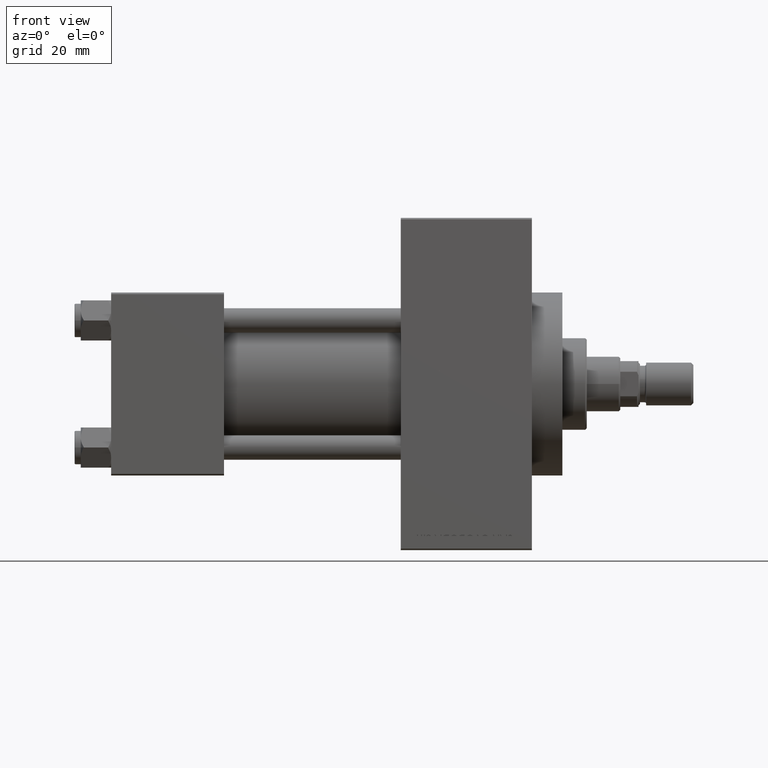
[diagram: clean part render]
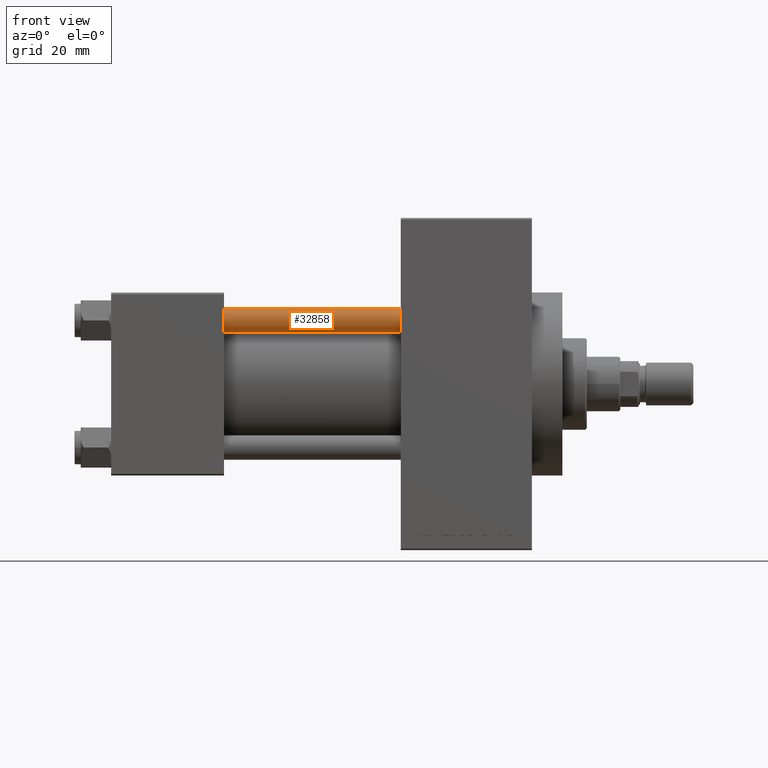
[diagram: same view with one face highlighted and labeled with its STEP entity id]
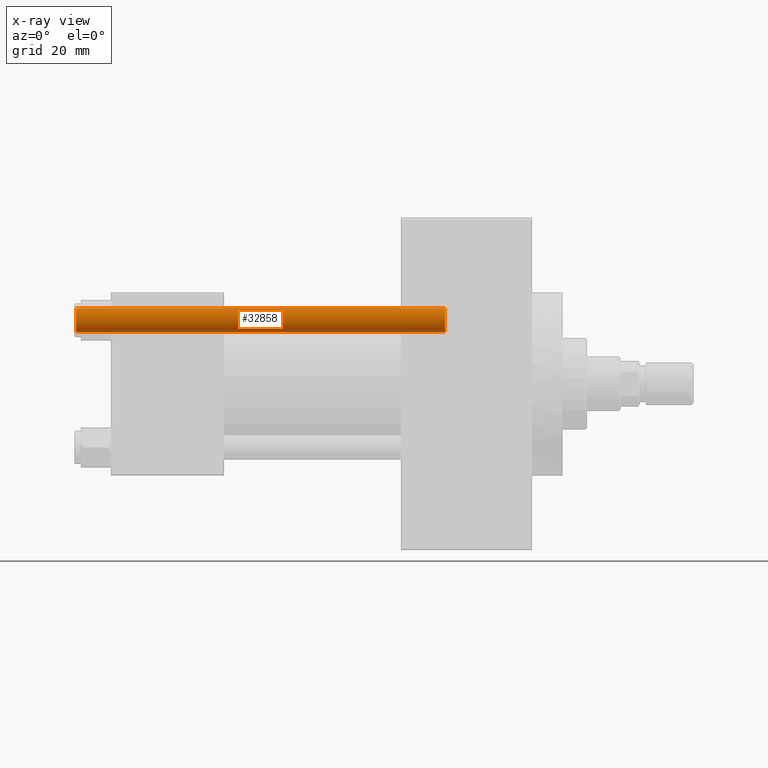
[diagram: x-ray of the same camera — body ghosted, the highlighted face saturated]
A machine part, front view. The second image highlights one B-rep face of the part: STEP entity #32858.
The next image is the same camera in x-ray: the body ghosted, the highlighted face saturated — about 0% of this face is hidden behind the body in this view.
In plain terms, the highlighted cylindrical surface (edge-blend (fillet) strip) has radius 4 mm, axis along (1, 0, 0).
Its self-contained STEP definition (entity closure, byte-faithful):
#2314 = AXIS2_PLACEMENT_3D ( 'NONE', #5498, #16821, #13050 ) ;
#3088 = EDGE_CURVE ( 'NONE', #15246, #17246, #13470, .T. ) ;
#3248 = DIRECTION ( 'NONE',  ( -1.000000000000000000, 0.000000000000000000, 0.000000000000000000 ) ) ;
#3862 = ORIENTED_EDGE ( 'NONE', *, *, #48197, .F. ) ;
#4022 = CARTESIAN_POINT ( 'NONE',  ( 4.000000000000000000, 4.898587196589411843E-16, 121.5000000000000426 ) ) ;
#5498 = CARTESIAN_POINT ( 'NONE',  ( 0.000000000000000000, 0.000000000000000000, 121.5000000000000426 ) ) ;
#5563 = CARTESIAN_POINT ( 'NONE',  ( -4.000000000000000000, 0.000000000000000000, 0.5000000000000559552 ) ) ;
#5617 = LINE ( 'NONE', #43632, #26743 ) ;
#6316 = ORIENTED_EDGE ( 'NONE', *, *, #23373, .T. ) ;
#7401 = CARTESIAN_POINT ( 'NONE',  ( 4.000000000000000000, 4.898587196589411843E-16, 0.5000000000000559552 ) ) ;
#11329 = ORIENTED_EDGE ( 'NONE', *, *, #36619, .T. ) ;
#13050 = DIRECTION ( 'NONE',  ( 1.000000000000000000, 0.000000000000000000, 0.000000000000000000 ) ) ;
#13470 = CIRCLE ( 'NONE', #14372, 4.000000000000000000 ) ;
#14372 = AXIS2_PLACEMENT_3D ( 'NONE', #24066, #43945, #39925 ) ;
#15246 = VERTEX_POINT ( 'NONE', #7401 ) ;
#16821 = DIRECTION ( 'NONE',  ( 0.000000000000000000, 0.000000000000000000, -1.000000000000000000 ) ) ;
#16934 = DIRECTION ( 'NONE',  ( -0.000000000000000000, -0.000000000000000000, -1.000000000000000000 ) ) ;
#17246 = VERTEX_POINT ( 'NONE', #5563 ) ;
#20522 = CARTESIAN_POINT ( 'NONE',  ( -4.000000000000000000, 0.000000000000000000, 122.0000000000000000 ) ) ;
#21588 = CIRCLE ( 'NONE', #2314, 4.000000000000000000 ) ;
#22839 = CARTESIAN_POINT ( 'NONE',  ( 0.000000000000000000, 0.000000000000000000, 122.0000000000000000 ) ) ;
#23373 = EDGE_CURVE ( 'NONE', #49501, #41143, #21588, .T. ) ;
#23546 = ORIENTED_EDGE ( 'NONE', *, *, #3088, .T. ) ;
#24066 = CARTESIAN_POINT ( 'NONE',  ( 0.000000000000000000, 0.000000000000000000, 0.5000000000000559552 ) ) ;
#25074 = DIRECTION ( 'NONE',  ( -0.000000000000000000, -0.000000000000000000, -1.000000000000000000 ) ) ;
#26743 = VECTOR ( 'NONE', #16934, 1000.000000000000000 ) ;
#26994 = VECTOR ( 'NONE', #25074, 1000.000000000000000 ) ;
#27816 = CARTESIAN_POINT ( 'NONE',  ( -4.000000000000000000, 0.000000000000000000, 121.5000000000000426 ) ) ;
#28253 = AXIS2_PLACEMENT_3D ( 'NONE', #22839, #38231, #3248 ) ;
#30166 = FACE_OUTER_BOUND ( 'NONE', #40367, .T. ) ;
#32858 = ADVANCED_FACE ( 'NONE', ( #30166 ), #33713, .T. ) ;
#33713 = CYLINDRICAL_SURFACE ( 'NONE', #28253, 4.000000000000000000 ) ;
#36619 = EDGE_CURVE ( 'NONE', #41143, #15246, #5617, .T. ) ;
#38231 = DIRECTION ( 'NONE',  ( -0.000000000000000000, -0.000000000000000000, -1.000000000000000000 ) ) ;
#39689 = LINE ( 'NONE', #20522, #26994 ) ;
#39925 = DIRECTION ( 'NONE',  ( 1.000000000000000000, 0.000000000000000000, 0.000000000000000000 ) ) ;
#40367 = EDGE_LOOP ( 'NONE', ( #6316, #11329, #23546, #3862 ) ) ;
#41143 = VERTEX_POINT ( 'NONE', #4022 ) ;
#43632 = CARTESIAN_POINT ( 'NONE',  ( 4.000000000000000000, 4.898587196589411843E-16, 122.0000000000000000 ) ) ;
#43945 = DIRECTION ( 'NONE',  ( -0.000000000000000000, -0.000000000000000000, 1.000000000000000000 ) ) ;
#48197 = EDGE_CURVE ( 'NONE', #49501, #17246, #39689, .T. ) ;
#49501 = VERTEX_POINT ( 'NONE', #27816 ) ;